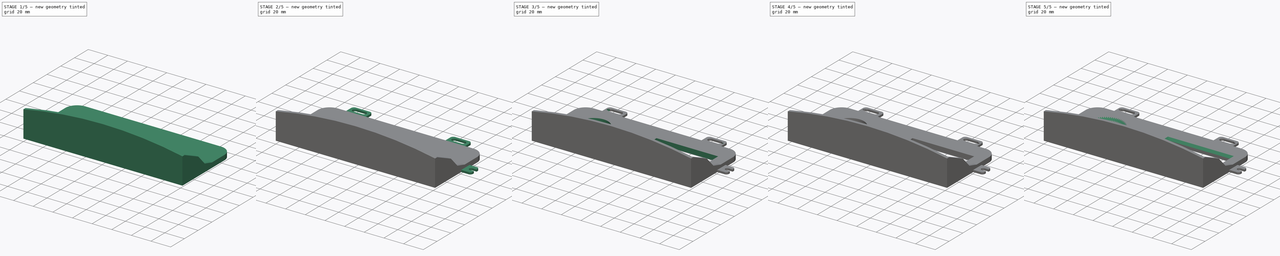
[diagram: build sequence overview — one tinted view per stage of 5, left to right]
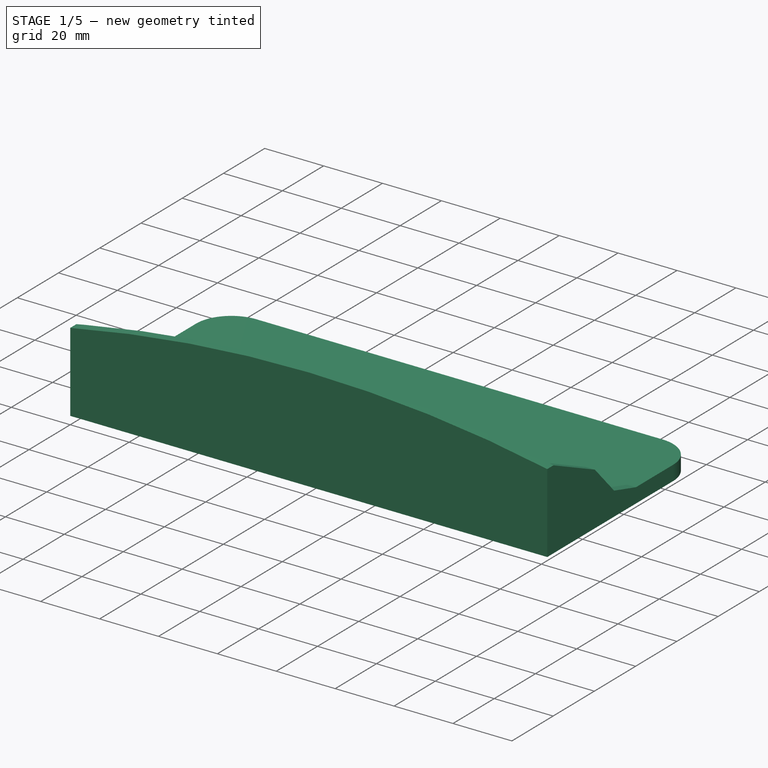
[diagram: stage 1 of 5 — iso view after this stage's code; geometry added in this stage tinted green]
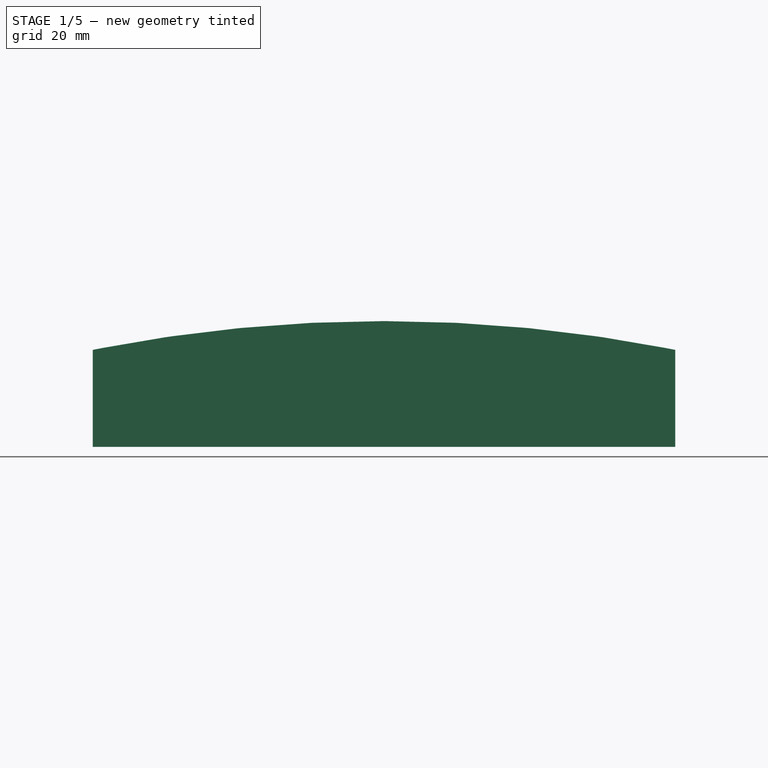
[diagram: stage 1 of 5 — front view after this stage's code; geometry added in this stage tinted green]
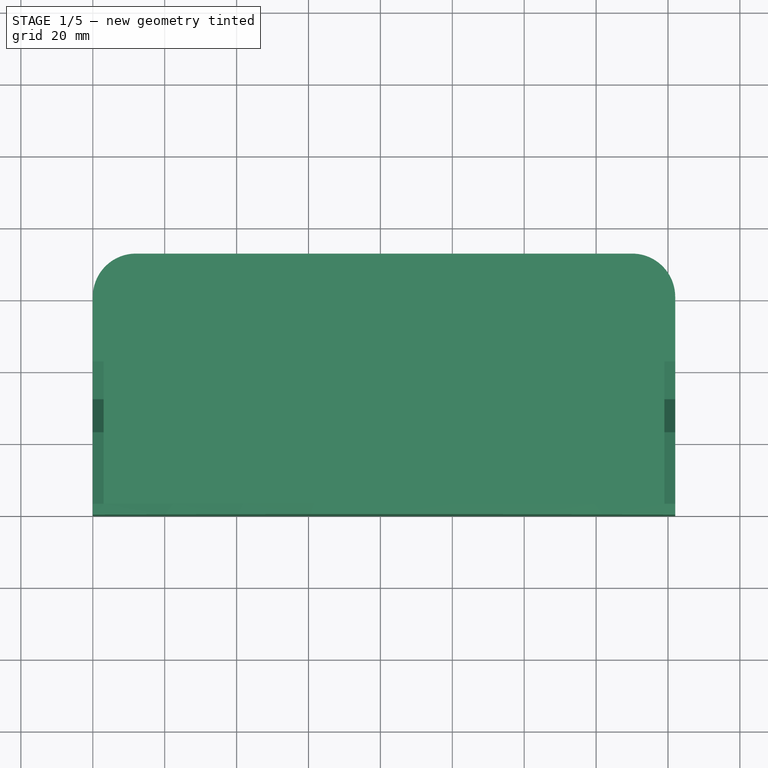
[diagram: stage 1 of 5 — top view after this stage's code; geometry added in this stage tinted green]
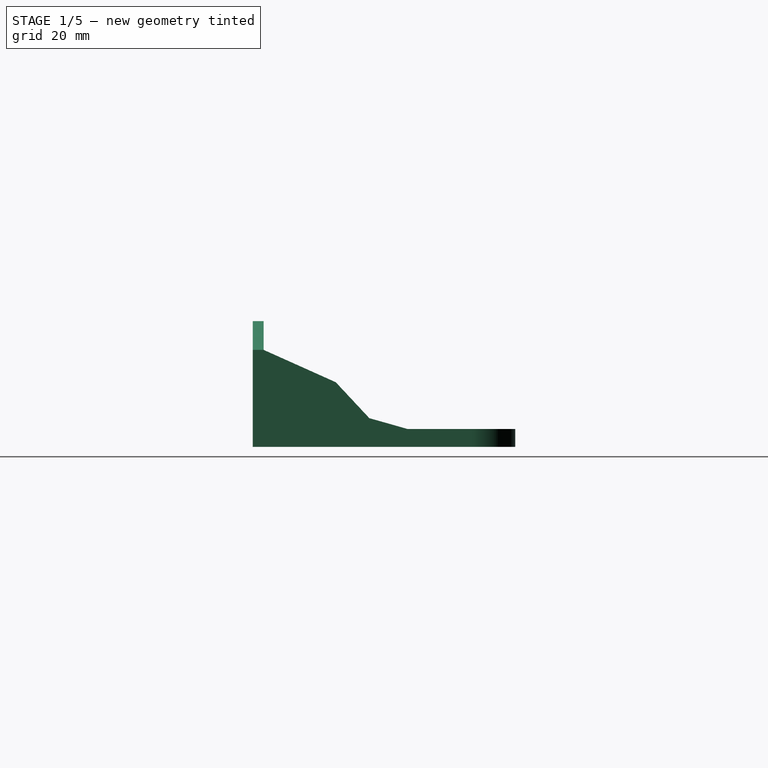
[diagram: stage 1 of 5 — right view after this stage's code; geometry added in this stage tinted green]
FCSTD DOCUMENT  (FreeCAD 0.20R29603 (Git))
Label: IC_Sprayer
License: All rights reserved
LicenseURL: http://en.wikipedia.org/wiki/All_rights_reserved
objects: Sketcher::SketchObject×18, PartDesign::Pocket×15, PartDesign::Pad×3, PartDesign::Chamfer×2, PartDesign::Body×1
note: 59 computed .brp shape members not serialized (recipe doc carries the construction recipe); baked Part::Feature solids carry a one-line shape summary decoded from their .brp

FEATURE [Sketcher::SketchObject] Sketch001
  FullyConstrained = true
  MapMode = 5
  Support = -> [XY_Plane]
  sketch-geometry (8):
    g0: LineSegment StartX=0 StartY=0 StartZ=0 EndX=162 EndY=0 EndZ=0
    g1: LineSegment StartX=162 StartY=0 StartZ=0 EndX=162 EndY=61 EndZ=0
    g2: LineSegment StartX=150 StartY=73 StartZ=0 EndX=12 EndY=73 EndZ=0
    g3: LineSegment StartX=0 StartY=61 StartZ=0 EndX=0 EndY=0 EndZ=0
    g4: ArcOfCircle CenterX=150 CenterY=61 CenterZ=0 NormalX=0 NormalY=0 NormalZ=1 AngleXU=0 Radius=12 StartAngle=3.474e-13 EndAngle=1.5708
    g5: GeomPoint X=162 Y=73 Z=0
    g6: ArcOfCircle CenterX=12 CenterY=61 CenterZ=0 NormalX=0 NormalY=0 NormalZ=1 AngleXU=0 Radius=12 StartAngle=1.5708 EndAngle=3.14159
    g7: GeomPoint X=0 Y=73 Z=0
  constraints (19):
    c: Coincident(g0,g1)
    c: Coincident(g3,g0)
    c: Horizontal(g0)
    c: Horizontal(g2)
    c: Vertical(g1)
    c: Vertical(g3)
    c: Coincident(g0,g-1)
    c: DistanceX(g7,g5) = 162
    c: DistanceY(g1,g5) = 73
    c: PointOnObject(g5,g1)
    c: PointOnObject(g5,g2)
    c: Tangent(g1,g4) = -1.5708
    c: Tangent(g2,g4) = -1.5708
    c: PointOnObject(g7,g3)
    c: PointOnObject(g7,g2)
    c: Tangent(g3,g6) = -1.5708
    c: Tangent(g2,g6) = -1.5708
    c: DistanceY(g6,g2) = 12
    c: DistanceY(g4,g2) = 12
FEATURE [PartDesign::Pad] Pad
  Direction = (0,0,1)
  Length = 5
  Length2 = 10
  Profile = -> Sketch001
  ReferenceAxis = -> Sketch001 [N_Axis]
  Type = 0
FEATURE [Sketcher::SketchObject] Sketch002
  ExternalGeometry = -> [Pad]
  FullyConstrained = true
  MapMode = 5
  Placement = pos=(0,0,5) rot=(0,0,1;0rad)
  Support = -> [Pad]
  sketch-geometry (8):
    g0: LineSegment StartX=0 StartY=0 StartZ=0 EndX=0 EndY=43 EndZ=0
    g1: LineSegment StartX=0 StartY=43 StartZ=0 EndX=3 EndY=43 EndZ=0
    g2: LineSegment StartX=3 StartY=43 StartZ=0 EndX=3 EndY=3 EndZ=0
    g3: LineSegment StartX=3 StartY=3 StartZ=0 EndX=159 EndY=3 EndZ=0
    g4: LineSegment StartX=159 StartY=3 StartZ=0 EndX=159 EndY=43 EndZ=0
    g5: LineSegment StartX=159 StartY=43 StartZ=0 EndX=162 EndY=43 EndZ=0
    g6: LineSegment StartX=162 StartY=43 StartZ=0 EndX=162 EndY=0 EndZ=0
    g7: LineSegment StartX=162 StartY=0 StartZ=0 EndX=0 EndY=0 EndZ=0
  constraints (22):
    c: Coincident(g-1,g0)
    c: PointOnObject(g0,g-2)
    c: Coincident(g0,g1)
    c: Coincident(g1,g2)
    c: Vertical(g2)
    c: Coincident(g2,g3)
    c: Horizontal(g3)
    c: Coincident(g3,g4)
    c: Vertical(g4)
    c: Coincident(g4,g5)
    c: PointOnObject(g5,g-5)
    c: Coincident(g5,g6)
    c: Coincident(g6,g-5)
    c: Coincident(g6,g7)
    c: Coincident(g7,g0)
    c: Parallel(g1,g-1)
    c: DistanceX(g1,g1) = 3
    c: DistanceY(g0,g2) = 3
    c: Parallel(g5,g-1)
    c: DistanceX(g3,g6) = 3
    c: DistanceY(g1,g-3) = 30
    c: DistanceY(g1,g4) = 0
FEATURE [PartDesign::Pad] Pad001
  BaseFeature = -> Pad
  Direction = (0,0,1)
  Length = 30
  Length2 = 10
  Profile = -> Sketch002
  ReferenceAxis = -> Sketch002 [N_Axis]
  Type = 0
FEATURE [Sketcher::SketchObject] Sketch003
  ExternalGeometry = -> [Pad001]
  FullyConstrained = true
  MapMode = 5
  Placement = pos=(162,0,0) rot=(0.57735,0.57735,0.57735;2.0944rad)
  Support = -> [Pad001]
  sketch-geometry (6):
    g0: LineSegment StartX=43 StartY=5 StartZ=0 EndX=32.417 EndY=8 EndZ=0
    g1: LineSegment StartX=32.417 StartY=8 StartZ=0 EndX=23.0749 EndY=18 EndZ=0
    g2: LineSegment StartX=23.0749 StartY=18 StartZ=0 EndX=3 EndY=27 EndZ=0
    g3: LineSegment StartX=3 StartY=27 StartZ=0 EndX=3 EndY=35 EndZ=0
    g4: LineSegment StartX=3 StartY=35 StartZ=0 EndX=43 EndY=35 EndZ=0
    g5: LineSegment StartX=43 StartY=35 StartZ=0 EndX=43 EndY=5 EndZ=0
  constraints (16):
    c: Coincident(g-3,g0)
    c: Coincident(g0,g1)
    c: Coincident(g1,g2)
    c: Coincident(g2,g3)
    c: PointOnObject(g3,g-4)
    c: Vertical(g3)
    c: Coincident(g3,g4)
    c: Coincident(g4,g-4)
    c: Coincident(g4,g5)
    c: Coincident(g5,g0)
    c: Distance(g0) = 11
    c: DistanceY(g0,g0) = 3
    c: DistanceY(g0,g1) = 13
    c: DistanceX(g-4,g3) = 3
    c: DistanceY(g0,g2) = 22
    c: Distance(g2) = 22
FEATURE [PartDesign::Pocket] Pocket
  BaseFeature = -> Pad001
  Direction = (-1,0,0)
  Length = 5
  Length2 = 5
  Profile = -> Sketch003
  ReferenceAxis = -> Sketch003 [N_Axis]
  Type = 1
FEATURE [Sketcher::SketchObject] Sketch004
  ExternalGeometry = -> [Pocket]
  FullyConstrained = false
  MapMode = 5
  Placement = pos=(0,0,0) rot=(1,0,0;1.5708rad)
  Support = -> [Pocket]
  sketch-geometry (4):
    g0: LineSegment StartX=-1.42e-14 StartY=27 StartZ=0 EndX=0 EndY=61.0434 EndZ=0
    g1: LineSegment StartX=0 StartY=61.0434 StartZ=0 EndX=162 EndY=61.0434 EndZ=0
    g2: LineSegment StartX=162 StartY=61.0434 StartZ=0 EndX=162 EndY=27 EndZ=0
    g3: ArcOfCircle CenterX=81 CenterY=-379.062 CenterZ=0 NormalX=0 NormalY=0 NormalZ=1 AngleXU=0 Radius=414.062 StartAngle=1.3739 EndAngle=1.76769
  constraints (10):
    c: Coincident(g-5,g0)
    c: PointOnObject(g0,g-2)
    c: Coincident(g0,g1)
    c: Horizontal(g1)
    c: Coincident(g1,g2)
    c: Coincident(g2,g-4)
    c: Coincident(g3,g0)
    c: Coincident(g3,g2)
    c: Tangent(g3,g-6)
    c: Parallel(g2,g0)
FEATURE [PartDesign::Pocket] Pocket001
  BaseFeature = -> Pocket
  Direction = (0,1,-2e-16)
  Length = 5
  Length2 = 5
  Profile = -> Sketch004
  ReferenceAxis = -> Sketch004 [N_Axis]
  Type = 0
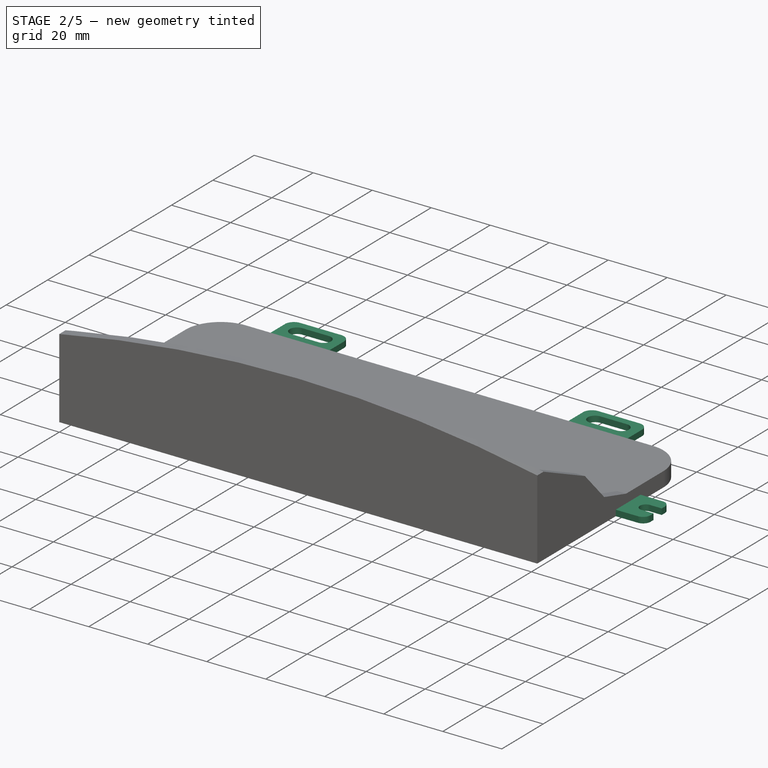
[diagram: stage 2 of 5 — iso view after this stage's code; geometry added in this stage tinted green]
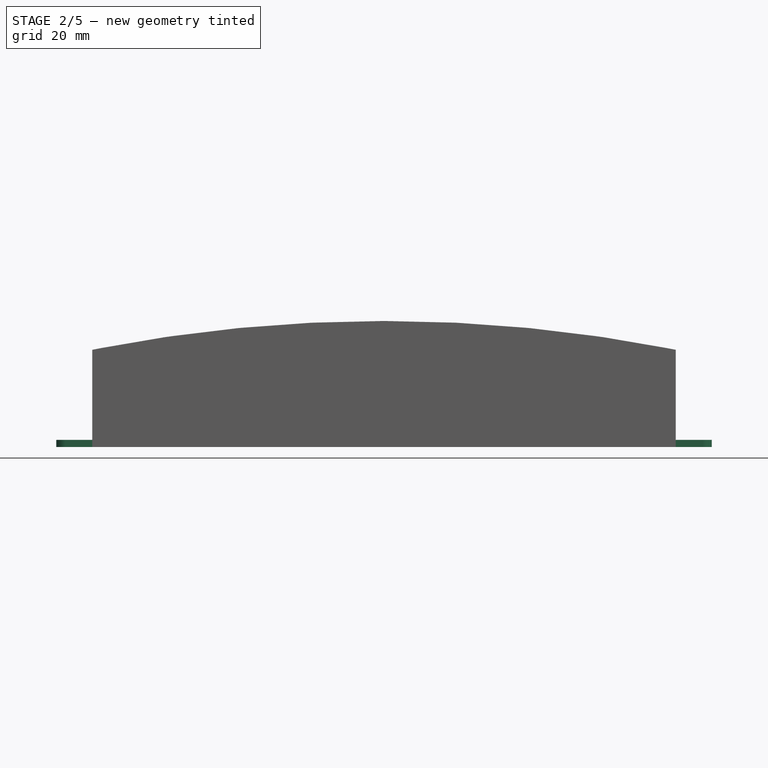
[diagram: stage 2 of 5 — front view after this stage's code; geometry added in this stage tinted green]
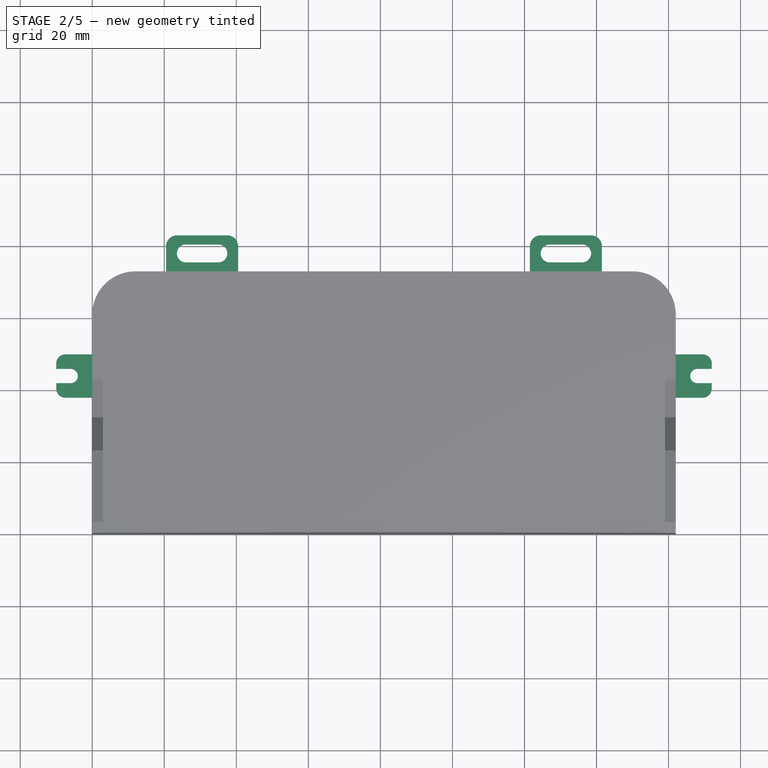
[diagram: stage 2 of 5 — top view after this stage's code; geometry added in this stage tinted green]
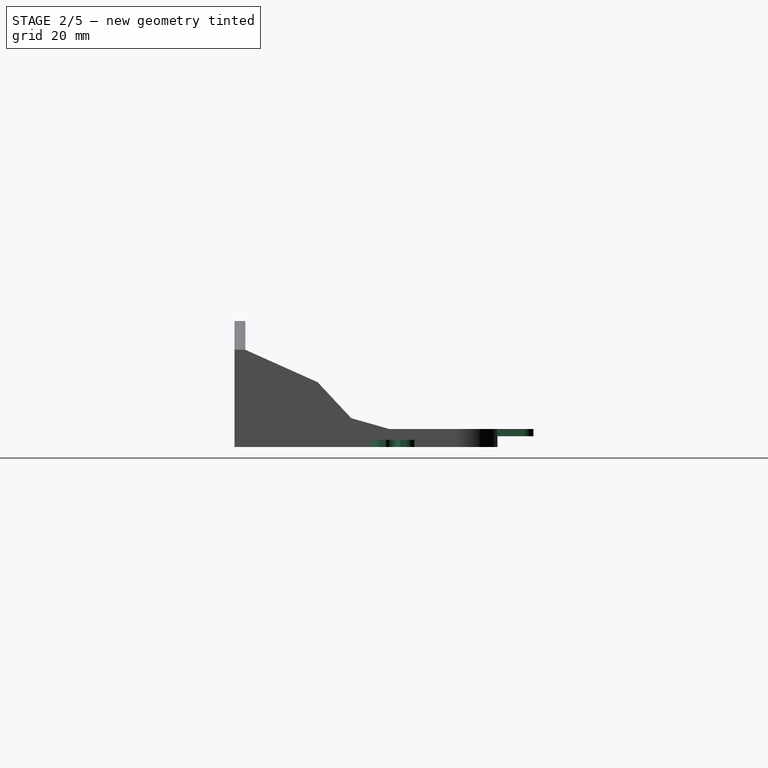
[diagram: stage 2 of 5 — right view after this stage's code; geometry added in this stage tinted green]
FEATURE [Sketcher::SketchObject] Sketch005
  ExternalGeometry = -> [Pocket001]
  FullyConstrained = true
  MapMode = 5
  Placement = pos=(0,0,5) rot=(0,0,1;0rad)
  Support = -> [Pocket001]
  sketch-geometry (32):
    g0: LineSegment StartX=162 StartY=50 StartZ=0 EndX=169.5 EndY=50 EndZ=0
    g1: LineSegment StartX=172 StartY=47.5 StartZ=0 EndX=172 EndY=40.5 EndZ=0
    g2: LineSegment StartX=169.5 StartY=38 StartZ=0 EndX=162 EndY=38 EndZ=0
    g3: LineSegment StartX=162 StartY=38 StartZ=0 EndX=162 EndY=50 EndZ=0
    g4: LineSegment StartX=0 StartY=50 StartZ=0 EndX=-7.5 EndY=50 EndZ=0
    g5: LineSegment StartX=-10 StartY=47.5 StartZ=0 EndX=-10 EndY=40.5 EndZ=0
    g6: LineSegment StartX=-7.5 StartY=38 StartZ=0 EndX=0 EndY=38 EndZ=0
    g7: LineSegment StartX=0 StartY=38 StartZ=0 EndX=0 EndY=50 EndZ=0
    g8: LineSegment StartX=20.5 StartY=73 StartZ=0 EndX=40.5 EndY=73 EndZ=0
    g9: LineSegment StartX=40.5 StartY=73 StartZ=0 EndX=40.5 EndY=80 EndZ=0
    g10: LineSegment StartX=37.5 StartY=83 StartZ=0 EndX=23.5 EndY=83 EndZ=0
    g11: LineSegment StartX=20.5 StartY=80 StartZ=0 EndX=20.5 EndY=73 EndZ=0
    g12: LineSegment StartX=121.5 StartY=73 StartZ=0 EndX=141.5 EndY=73 EndZ=0
    g13: LineSegment StartX=141.5 StartY=73 StartZ=0 EndX=141.5 EndY=80 EndZ=0
    g14: LineSegment StartX=138.5 StartY=83 StartZ=0 EndX=124.5 EndY=83 EndZ=0
    g15: LineSegment StartX=121.5 StartY=80 StartZ=0 EndX=121.5 EndY=73 EndZ=0
    g16: ArcOfCircle CenterX=-7.5 CenterY=47.5 CenterZ=0 NormalX=0 NormalY=0 NormalZ=1 AngleXU=0 Radius=2.5 StartAngle=1.5708 EndAngle=3.14159
    g17: GeomPoint X=-10 Y=50 Z=0
    g18: ArcOfCircle CenterX=-7.5 CenterY=40.5 CenterZ=0 NormalX=0 NormalY=0 NormalZ=1 AngleXU=0 Radius=2.5 StartAngle=3.14159 EndAngle=4.71239
    g19: GeomPoint X=-10 Y=38 Z=0
    g20: ArcOfCircle CenterX=169.5 CenterY=40.5 CenterZ=0 NormalX=0 NormalY=0 NormalZ=1 AngleXU=0 Radius=2.5 StartAngle=4.71239 EndAngle=6.28319
    g21: GeomPoint X=172 Y=38 Z=0
    g22: ArcOfCircle CenterX=169.5 CenterY=47.5 CenterZ=0 NormalX=0 NormalY=0 NormalZ=1 AngleXU=0 Radius=2.5 StartAngle=0 EndAngle=1.5708
    g23: GeomPoint X=172 Y=50 Z=0
    g24: ArcOfCircle CenterX=23.5 CenterY=80 CenterZ=0 NormalX=0 NormalY=0 NormalZ=1 AngleXU=0 Radius=3 StartAngle=1.5708 EndAngle=3.14159
    g25: GeomPoint X=20.5 Y=83 Z=0
    g26: ArcOfCircle CenterX=37.5 CenterY=80 CenterZ=0 NormalX=0 NormalY=0 NormalZ=1 AngleXU=0 Radius=3 StartAngle=-1.8e-15 EndAngle=1.5708
    g27: GeomPoint X=40.5 Y=83 Z=0
    g28: ArcOfCircle CenterX=124.5 CenterY=80 CenterZ=0 NormalX=0 NormalY=0 NormalZ=1 AngleXU=0 Radius=3 StartAngle=1.5708 EndAngle=3.14159
    g29: GeomPoint X=121.5 Y=83 Z=0
    g30: ArcOfCircle CenterX=138.5 CenterY=80 CenterZ=0 NormalX=0 NormalY=0 NormalZ=1 AngleXU=0 Radius=3 StartAngle=-9e-16 EndAngle=1.5708
    g31: GeomPoint X=141.5 Y=83 Z=0
  constraints (80):
    c: Coincident(g2,g3)
    c: Coincident(g3,g0)
    c: Horizontal(g0)
    c: Horizontal(g2)
    c: Vertical(g1)
    c: Vertical(g3)
    c: PointOnObject(g0,g-5)
    c: Coincident(g6,g7)
    c: Coincident(g7,g4)
    c: Horizontal(g4)
    c: Horizontal(g6)
    c: Vertical(g5)
    c: Vertical(g7)
    c: PointOnObject(g4,g-4)
    c: Coincident(g8,g9)
    c: Coincident(g11,g8)
    c: Horizontal(g8)
    c: Horizontal(g10)
    c: Vertical(g9)
    c: Vertical(g11)
    c: PointOnObject(g8,g-3)
    c: Coincident(g12,g13)
    c: Coincident(g15,g12)
    c: Horizontal(g12)
    c: Horizontal(g14)
    c: Vertical(g13)
    c: Vertical(g15)
    c: PointOnObject(g12,g-3)
    c: DistanceY(g21,g23) = 12
    c: DistanceY(g19,g17) = 12
    c: DistanceY(g2,g-5) = 5
    c: DistanceY(g6,g-4) = 5
    c: DistanceX(g17,g4) = 10
    c: DistanceX(g0,g23) = 10
    c: DistanceX(g29,g31) = 20
    c: DistanceX(g25,g27) = 20
    c: DistanceY(g13,g31) = 10
    c: DistanceY(g9,g27) = 10
    c: PointOnObject(g17,g5)
    c: PointOnObject(g17,g4)
    c: Tangent(g5,g16) = -1.5708
    c: Tangent(g4,g16) = -1.5708
    c: PointOnObject(g19,g6)
    c: PointOnObject(g19,g5)
    c: Tangent(g6,g18) = -1.5708
    c: Tangent(g5,g18) = -1.5708
    c: PointOnObject(g21,g2)
    c: PointOnObject(g21,g1)
    c: Tangent(g2,g20) = 1.5708
    c: Tangent(g1,g20) = 1.5708
    c: PointOnObject(g23,g1)
    c: PointOnObject(g23,g0)
    c: Tangent(g1,g22) = 1.5708
    c: Tangent(g0,g22) = 1.5708
    c: DistanceX(g22,g1) = 2.5
    c: DistanceX(g20,g1) = 2.5
    c: DistanceX(g5,g18) = 2.5
    c: DistanceX(g5,g16) = 2.5
    c: PointOnObject(g25,g11)
    c: PointOnObject(g25,g10)
    c: Tangent(g11,g24) = -1.5708
    c: Tangent(g10,g24) = -1.5708
    c: PointOnObject(g27,g9)
    c: PointOnObject(g27,g10)
    c: Tangent(g9,g26) = -1.5708
    c: Tangent(g10,g26) = -1.5708
    c: PointOnObject(g29,g15)
    c: PointOnObject(g29,g14)
    c: Tangent(g15,g28) = -1.5708
    c: Tangent(g14,g28) = -1.5708
    c: PointOnObject(g31,g13)
    c: PointOnObject(g31,g14)
    c: Tangent(g13,g30) = -1.5708
    c: Tangent(g14,g30) = -1.5708
    c: DistanceX(g11,g24) = 3
    c: DistanceX(g26,g9) = 3
    c: DistanceX(g15,g28) = 3
    c: DistanceX(g30,g13) = 3
    c: DistanceX(g12,g-5) = 20.5
    c: DistanceX(g-4,g8) = 20.5
FEATURE [PartDesign::Pad] Pad002
  BaseFeature = -> Pocket001
  Direction = (0,0,1)
  Length = 5
  Length2 = 10
  Profile = -> Sketch005
  ReferenceAxis = -> Sketch005 [N_Axis]
  Reversed = true
  Type = 0
FEATURE [Sketcher::SketchObject] Sketch006
  ExternalGeometry = -> [Pad002]
  FullyConstrained = false
  MapMode = 5
  Placement = pos=(0,0,5) rot=(0,0,1;0rad)
  Support = -> [Pad002]
  sketch-geometry (16):
    g0: ArcOfCircle CenterX=26 CenterY=78 CenterZ=0 NormalX=0 NormalY=0 NormalZ=1 AngleXU=0 Radius=2.5 StartAngle=1.5708 EndAngle=4.71239
    g1: ArcOfCircle CenterX=35 CenterY=78 CenterZ=0 NormalX=0 NormalY=0 NormalZ=1 AngleXU=0 Radius=2.5 StartAngle=4.71239 EndAngle=7.85398
    g2: LineSegment StartX=26 StartY=75.5 StartZ=0 EndX=35 EndY=75.5 EndZ=0
    g3: LineSegment StartX=35 StartY=80.5 StartZ=0 EndX=26 EndY=80.5 EndZ=0
    g4: ArcOfCircle CenterX=127 CenterY=78 CenterZ=0 NormalX=0 NormalY=0 NormalZ=1 AngleXU=0 Radius=2.5 StartAngle=1.5708 EndAngle=4.71239
    g5: ArcOfCircle CenterX=136 CenterY=78 CenterZ=0 NormalX=0 NormalY=0 NormalZ=1 AngleXU=0 Radius=2.5 StartAngle=4.71239 EndAngle=7.85398
    g6: LineSegment StartX=127 StartY=75.5 StartZ=0 EndX=136 EndY=75.5 EndZ=0
    g7: LineSegment StartX=136 StartY=80.5 StartZ=0 EndX=127 EndY=80.5 EndZ=0
    g8: ArcOfCircle CenterX=-15.2673 CenterY=44 CenterZ=0 NormalX=0 NormalY=0 NormalZ=1 AngleXU=0 Radius=2 StartAngle=1.5708 EndAngle=4.71239
    g9: ArcOfCircle CenterX=-6 CenterY=44 CenterZ=0 NormalX=0 NormalY=0 NormalZ=1 AngleXU=0 Radius=2 StartAngle=4.71239 EndAngle=7.85398
    g10: LineSegment StartX=-15.2673 StartY=42 StartZ=0 EndX=-6 EndY=42 EndZ=0
    g11: LineSegment StartX=-6 StartY=46 StartZ=0 EndX=-15.2673 EndY=46 EndZ=0
    g12: ArcOfCircle CenterX=180.836 CenterY=44 CenterZ=0 NormalX=0 NormalY=0 NormalZ=1 AngleXU=0 Radius=2 StartAngle=4.71239 EndAngle=7.85398
    g13: ArcOfCircle CenterX=168 CenterY=44 CenterZ=0 NormalX=0 NormalY=0 NormalZ=1 AngleXU=0 Radius=2 StartAngle=1.5708 EndAngle=4.71239
    g14: LineSegment StartX=180.836 StartY=46 StartZ=0 EndX=168 EndY=46 EndZ=0
    g15: LineSegment StartX=168 StartY=42 StartZ=0 EndX=180.836 EndY=42 EndZ=0
  constraints (38):
    c: Tangent(g0,g2) = -1.5708
    c: Tangent(g2,g1) = -1.5708
    c: Tangent(g1,g3) = -1.5708
    c: Tangent(g3,g0) = -1.5708
    c: Equal(g0,g1)
    c: Horizontal(g2)
    c: Tangent(g4,g6) = -1.5708
    c: Tangent(g6,g5) = -1.5708
    c: Tangent(g5,g7) = -1.5708
    c: Tangent(g7,g4) = -1.5708
    c: Equal(g4,g5)
    c: Horizontal(g6)
    c: DistanceY(g4,g-5) = 2.5
    c: DistanceY(g1,g-3) = 2.5
    c: DistanceY(g4,g4) = 5
    c: DistanceY(g0,g0) = 5
    c: DistanceX(g-7,g4) = 5.5
    c: DistanceX(g1,g-4) = 5.5
    c: Tangent(g8,g10) = -1.5708
    c: Tangent(g10,g9) = -1.5708
    c: Tangent(g9,g11) = -1.5708
    c: Tangent(g11,g8) = -1.5708
    c: Equal(g8,g9)
    c: Horizontal(g10)
    c: Tangent(g12,g14) = -1.5708
    c: Tangent(g14,g13) = -1.5708
    c: Tangent(g13,g15) = -1.5708
    c: Tangent(g15,g12) = -1.5708
    c: Equal(g12,g13)
    c: Horizontal(g14)
    c: DistanceY(g13,g13) = 4
    c: DistanceY(g8,g8) = 4
    c: DistanceX(g9,g-13) = 6
    c: DistanceY(g9,g-13) = 4
    c: DistanceY(g13,g-8) = 4
    c: DistanceX(g-8,g13) = 6
    c: DistanceX(g5,g-6) = 5.5
    c: DistanceX(g-14,g0) = 5.5
FEATURE [PartDesign::Pocket] Pocket002
  BaseFeature = -> Pad002
  Direction = (0,0,-1)
  Length = 5
  Length2 = 5
  Profile = -> Sketch006
  ReferenceAxis = -> Sketch006 [N_Axis]
  Type = 1
FEATURE [Sketcher::SketchObject] Sketch007
  ExternalGeometry = -> [Pocket002]
  FullyConstrained = false
  MapMode = 5
  Placement = pos=(0,0,5) rot=(0,0,1;0rad)
  Support = -> [Pocket002]
  sketch-geometry (8):
    g0: LineSegment StartX=0 StartY=38 StartZ=0 EndX=-22.3039 EndY=38 EndZ=0
    g1: LineSegment StartX=-22.3039 StartY=38 StartZ=0 EndX=-22.3039 EndY=53.153 EndZ=0
    g2: LineSegment StartX=-22.3039 StartY=53.153 StartZ=0 EndX=0 EndY=53.153 EndZ=0
    g3: LineSegment StartX=0 StartY=53.153 StartZ=0 EndX=0 EndY=38 EndZ=0
    g4: LineSegment StartX=162 StartY=50 StartZ=0 EndX=177.273 EndY=50 EndZ=0
    g5: LineSegment StartX=177.273 StartY=50 StartZ=0 EndX=177.273 EndY=36.2138 EndZ=0
    g6: LineSegment StartX=177.273 StartY=36.2138 StartZ=0 EndX=162 EndY=36.2138 EndZ=0
    g7: LineSegment StartX=162 StartY=36.2138 StartZ=0 EndX=162 EndY=50 EndZ=0
  constraints (18):
    c: Coincident(g0,g1)
    c: Coincident(g1,g2)
    c: Coincident(g2,g3)
    c: Coincident(g3,g0)
    c: Horizontal(g0)
    c: Horizontal(g2)
    c: Vertical(g1)
    c: Vertical(g3)
    c: Coincident(g0,g-4)
    c: Coincident(g4,g5)
    c: Coincident(g5,g6)
    c: Coincident(g6,g7)
    c: Coincident(g7,g4)
    c: Horizontal(g4)
    c: Horizontal(g6)
    c: Vertical(g5)
    c: Vertical(g7)
    c: Coincident(g4,g-3)
FEATURE [PartDesign::Pocket] Pocket003
  BaseFeature = -> Pocket002
  Direction = (0,0,-1)
  Length = 3
  Length2 = 5
  Profile = -> Sketch007
  ReferenceAxis = -> Sketch007 [N_Axis]
  Type = 0
FEATURE [Sketcher::SketchObject] Sketch008
  ExternalGeometry = -> [Pocket003]
  FullyConstrained = false
  MapMode = 5
  Placement = pos=(0,0,0) rot=(1,0,0;3.14159rad)
  Support = -> [Pocket003]
  sketch-geometry (8):
    g0: LineSegment StartX=40.5 StartY=-73 StartZ=0 EndX=14.8936 EndY=-73 EndZ=0
    g1: LineSegment StartX=14.8936 StartY=-73 StartZ=0 EndX=14.8936 EndY=-89.8515 EndZ=0
    g2: LineSegment StartX=14.8936 StartY=-89.8515 StartZ=0 EndX=40.5 EndY=-89.8515 EndZ=0
    g3: LineSegment StartX=40.5 StartY=-89.8515 StartZ=0 EndX=40.5 EndY=-73 EndZ=0
    g4: LineSegment StartX=121.5 StartY=-73 StartZ=0 EndX=158.155 EndY=-73 EndZ=0
    g5: LineSegment StartX=158.155 StartY=-73 StartZ=0 EndX=158.155 EndY=-91.3716 EndZ=0
    g6: LineSegment StartX=158.155 StartY=-91.3716 StartZ=0 EndX=121.5 EndY=-91.3716 EndZ=0
    g7: LineSegment StartX=121.5 StartY=-91.3716 StartZ=0 EndX=121.5 EndY=-73 EndZ=0
  constraints (18):
    c: Coincident(g0,g1)
    c: Coincident(g1,g2)
    c: Coincident(g2,g3)
    c: Coincident(g3,g0)
    c: Horizontal(g0)
    c: Horizontal(g2)
    c: Vertical(g1)
    c: Vertical(g3)
    c: Coincident(g0,g-3)
    c: Coincident(g4,g5)
    c: Coincident(g5,g6)
    c: Coincident(g6,g7)
    c: Coincident(g7,g4)
    c: Horizontal(g4)
    c: Horizontal(g6)
    c: Vertical(g5)
    c: Vertical(g7)
    c: Coincident(g4,g-3)
FEATURE [PartDesign::Pocket] Pocket004
  BaseFeature = -> Pocket003
  Direction = (0,0,1)
  Length = 3
  Length2 = 5
  Profile = -> Sketch008
  ReferenceAxis = -> Sketch008 [N_Axis]
  Type = 0
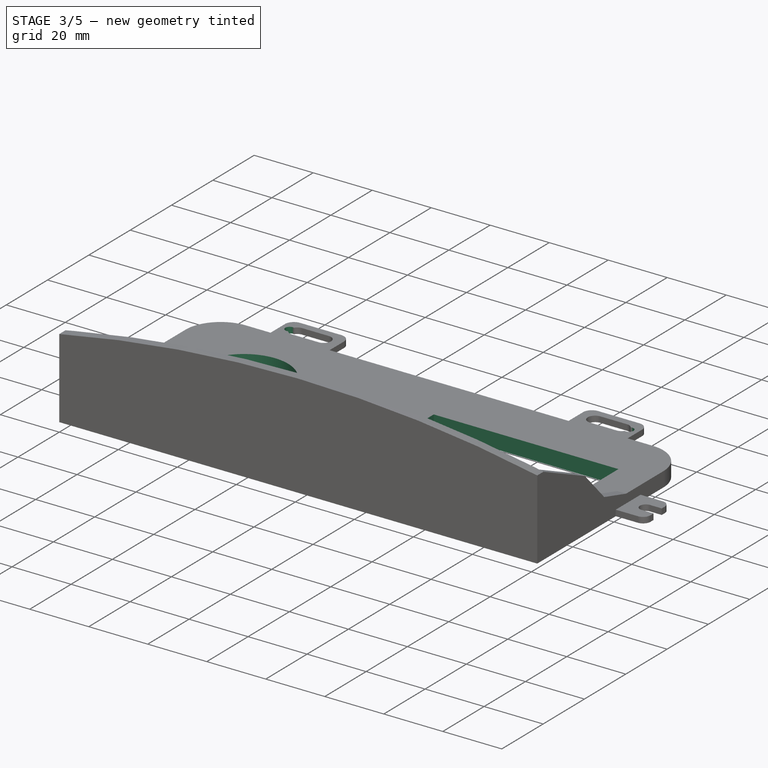
[diagram: stage 3 of 5 — iso view after this stage's code; geometry added in this stage tinted green]
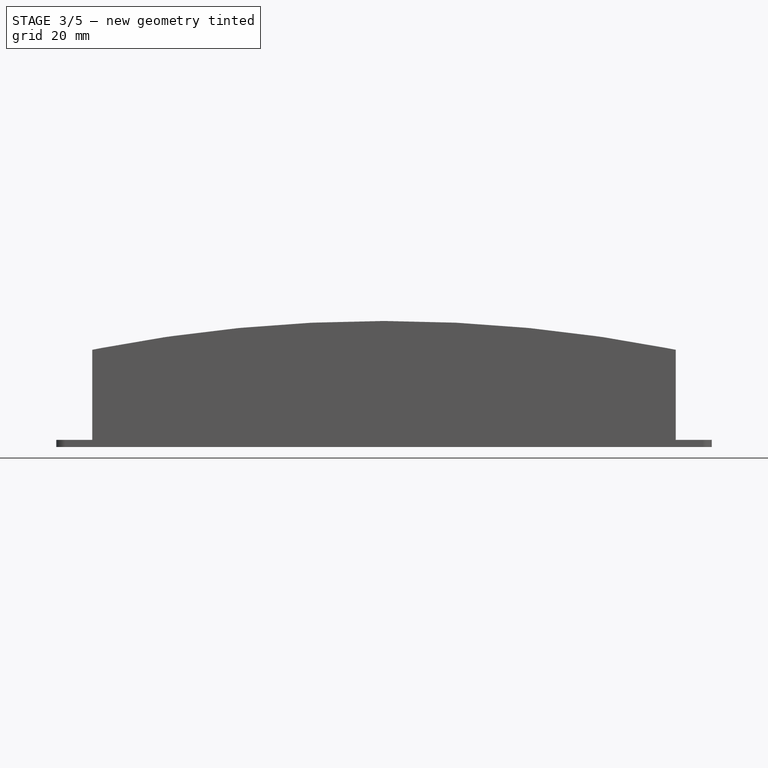
[diagram: stage 3 of 5 — front view after this stage's code; geometry added in this stage tinted green]
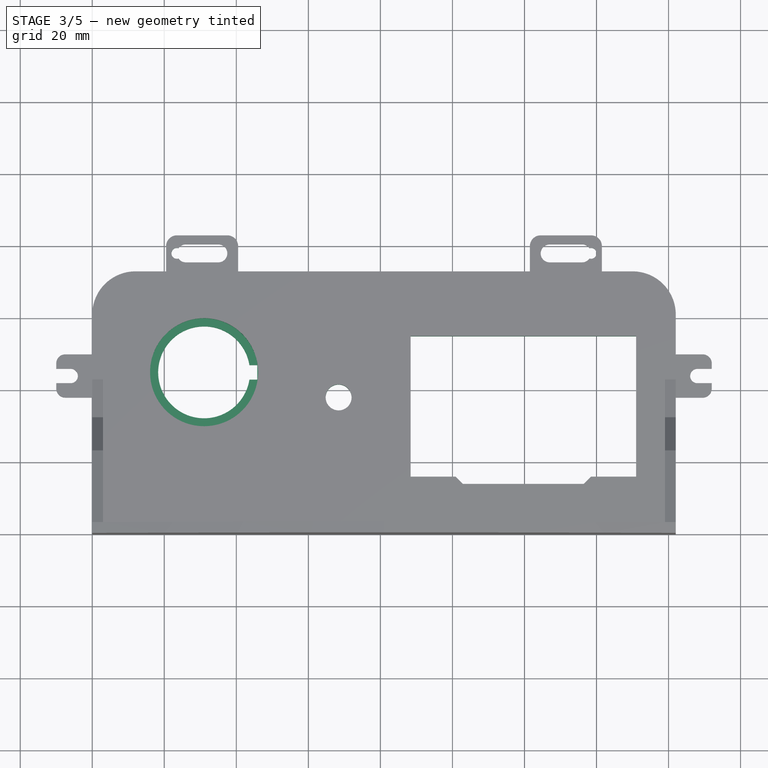
[diagram: stage 3 of 5 — top view after this stage's code; geometry added in this stage tinted green]
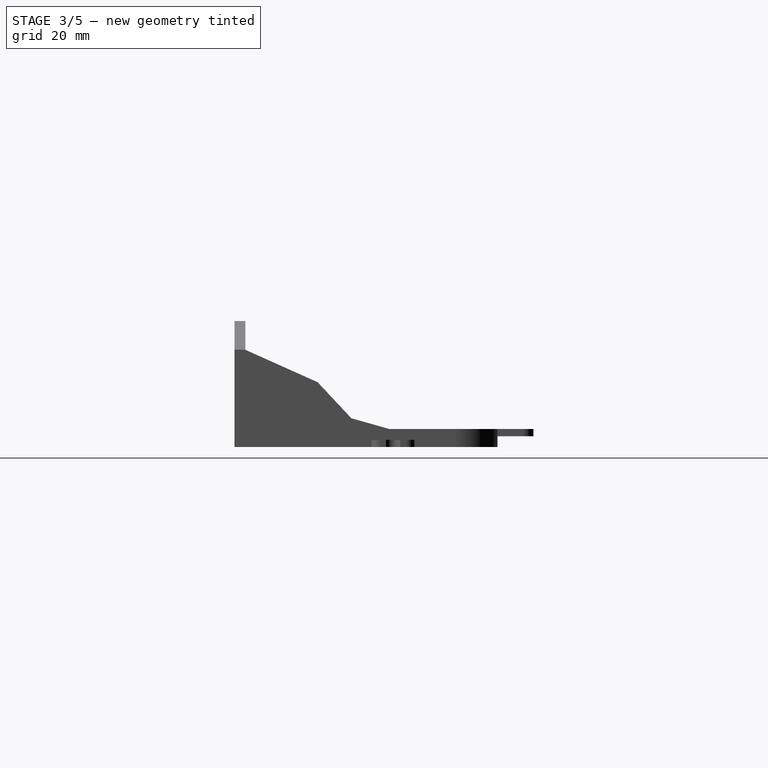
[diagram: stage 3 of 5 — right view after this stage's code; geometry added in this stage tinted green]
FEATURE [Sketcher::SketchObject] Sketch009
  ExternalGeometry = -> [Pocket004]
  FullyConstrained = true
  MapMode = 5
  Placement = pos=(0,0,5) rot=(0,0,1;0rad)
  Support = -> [Pocket004]
  sketch-geometry (2):
    g0: Circle CenterX=138.5 CenterY=78 CenterZ=0 NormalX=0 NormalY=0 NormalZ=1 AngleXU=0 Radius=1.5
    g1: Circle CenterX=23.5 CenterY=78 CenterZ=0 NormalX=0 NormalY=0 NormalZ=1 AngleXU=0 Radius=1.5
  constraints (6):
    c: PointOnObject(g0,g-4)
    c: PointOnObject(g1,g-3)
    c: DistanceY(g-3,g1) = 0
    c: Diameter(g1) = 3
    c: Diameter(g0) = 3
    c: DistanceY(g0,g-4) = 0
FEATURE [PartDesign::Pocket] Pocket005
  BaseFeature = -> Pocket004
  Direction = (0,0,-1)
  Length = 5
  Length2 = 5
  Profile = -> Sketch009
  ReferenceAxis = -> Sketch009 [N_Axis]
  Type = 0
FEATURE [Sketcher::SketchObject] Sketch010
  ExternalGeometry = -> [Pocket005]
  FullyConstrained = false
  MapMode = 5
  Placement = pos=(0,0,5) rot=(0,0,1;0rad)
  Support = -> [Pocket005]
  sketch-geometry (10):
    g0: LineSegment StartX=88.4 StartY=55 StartZ=0 EndX=151 EndY=55 EndZ=0
    g1: LineSegment StartX=151 StartY=55 StartZ=0 EndX=151 EndY=16 EndZ=0
    g2: LineSegment StartX=151 StartY=16 StartZ=0 EndX=138.5 EndY=16 EndZ=0
    g3: LineSegment StartX=138.5 StartY=16 StartZ=0 EndX=136.5 EndY=14 EndZ=0
    g4: LineSegment StartX=136.5 StartY=14 StartZ=0 EndX=102.9 EndY=14 EndZ=0
    g5: LineSegment StartX=102.9 StartY=14 StartZ=0 EndX=100.9 EndY=16 EndZ=0
    g6: LineSegment StartX=100.9 StartY=16 StartZ=0 EndX=88.4 EndY=16 EndZ=0
    g7: LineSegment StartX=88.4 StartY=16 StartZ=0 EndX=88.4 EndY=55 EndZ=0
    g8: Circle CenterX=68.4 CenterY=38 CenterZ=0 NormalX=0 NormalY=0 NormalZ=1 AngleXU=0 Radius=3.6
    g9: Circle CenterX=31.0483 CenterY=45 CenterZ=0 NormalX=0 NormalY=0 NormalZ=1 AngleXU=0 Radius=12.75
  constraints (29):
    c: Horizontal(g0)
    c: Coincident(g0,g1)
    c: Vertical(g1)
    c: Coincident(g1,g2)
    c: Coincident(g2,g3)
    c: Coincident(g3,g4)
    c: Horizontal(g4)
    c: Coincident(g4,g5)
    c: Coincident(g5,g6)
    c: Coincident(g6,g7)
    c: Coincident(g7,g0)
    c: DistanceX(g0,g0) = 62.6
    c: DistanceX(g6,g1) = 62.6
    c: DistanceY(g6,g0) = 39
    c: DistanceY(g1,g0) = 39
    c: DistanceY(g4,g0) = 41
    c: Parallel(g0,g6)
    c: Parallel(g2,g0)
    c: DistanceX(g6,g6) = 12.5
    c: DistanceX(g2,g2) = 12.5
    c: Angle(g6,g5) = 2.35619
    c: Angle(g3,g4) = 2.35619
    c: DistanceY(g0,g-3) = 18
    c: DistanceX(g0,g-4) = 11
    c: Diameter(g8) = 7.2
    c: DistanceY(g8,g0) = 17
    c: DistanceX(g8,g0) = 20
    c: Diameter(g9) = 25.5
    c: DistanceY(g9,g0) = 10
FEATURE [PartDesign::Pocket] Pocket006
  BaseFeature = -> Pocket005
  Direction = (0,0,-1)
  Length = 5
  Length2 = 5
  Profile = -> Sketch010
  ReferenceAxis = -> Sketch010 [N_Axis]
  Type = 1
FEATURE [Sketcher::SketchObject] Sketch011
  ExternalGeometry = -> [Pocket006]
  FullyConstrained = false
  MapMode = 5
  Placement = pos=(0,0,5) rot=(0,0,1;0rad)
  Support = -> [Pocket006]
  sketch-geometry (4):
    g0: LineSegment StartX=40.1733 StartY=47 StartZ=0 EndX=45.7983 EndY=47 EndZ=0
    g1: LineSegment StartX=45.7983 StartY=47 StartZ=0 EndX=45.7983 EndY=43 EndZ=0
    g2: LineSegment StartX=45.7983 StartY=43 StartZ=0 EndX=40.1733 EndY=43 EndZ=0
    g3: LineSegment StartX=40.1733 StartY=43 StartZ=0 EndX=40.1733 EndY=47 EndZ=0
  constraints (11):
    c: Coincident(g0,g1)
    c: Coincident(g1,g2)
    c: Coincident(g2,g3)
    c: Coincident(g3,g0)
    c: Horizontal(g0)
    c: Horizontal(g2)
    c: Vertical(g1)
    c: Vertical(g3)
    c: DistanceY(g2,g-4) = 2
    c: DistanceY(g3,g3) = 4
    c: DistanceX(g-3,g0) = 2
FEATURE [PartDesign::Pocket] Pocket007
  BaseFeature = -> Pocket006
  Direction = (0,0,-1)
  Length = 5
  Length2 = 5
  Profile = -> Sketch011
  ReferenceAxis = -> Sketch011 [N_Axis]
  Type = 1
FEATURE [Sketcher::SketchObject] Sketch012
  ExternalGeometry = -> [Pocket007]
  FullyConstrained = true
  MapMode = 5
  Placement = pos=(0,0,5) rot=(0,0,1;0rad)
  Support = -> [Pocket007]
  sketch-geometry (1):
    g0: Circle CenterX=31.0483 CenterY=45 CenterZ=0 NormalX=0 NormalY=0 NormalZ=1 AngleXU=0 Radius=15
  constraints (2):
    c: Coincident(g0,g-3)
    c: Diameter(g0) = 30
FEATURE [PartDesign::Pocket] Pocket008
  BaseFeature = -> Pocket007
  Direction = (0,0,-1)
  Length = 3
  Length2 = 5
  Profile = -> Sketch012
  ReferenceAxis = -> Sketch012 [N_Axis]
  Type = 0
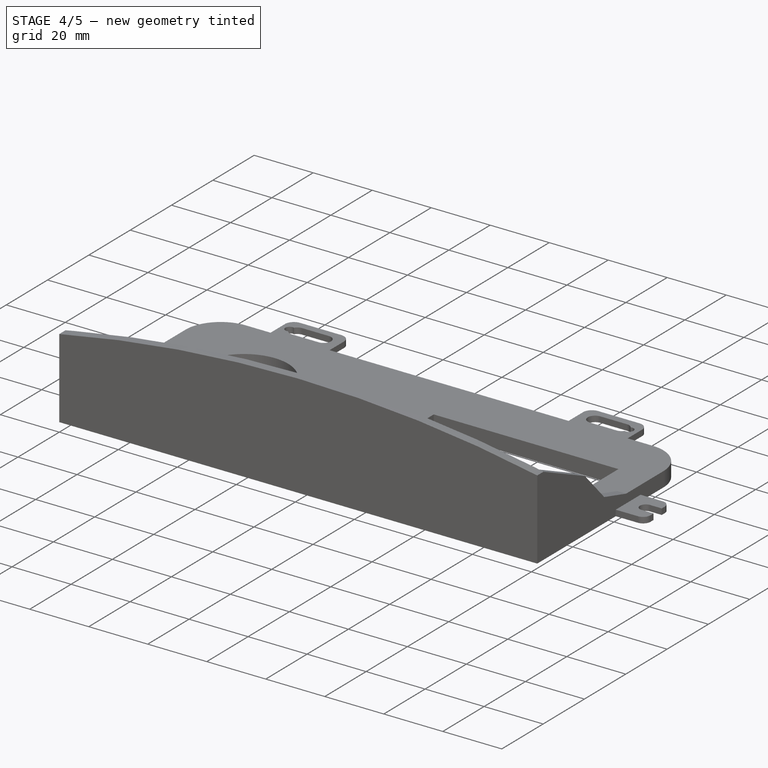
[diagram: stage 4 of 5 — iso view after this stage's code; geometry added in this stage tinted green]
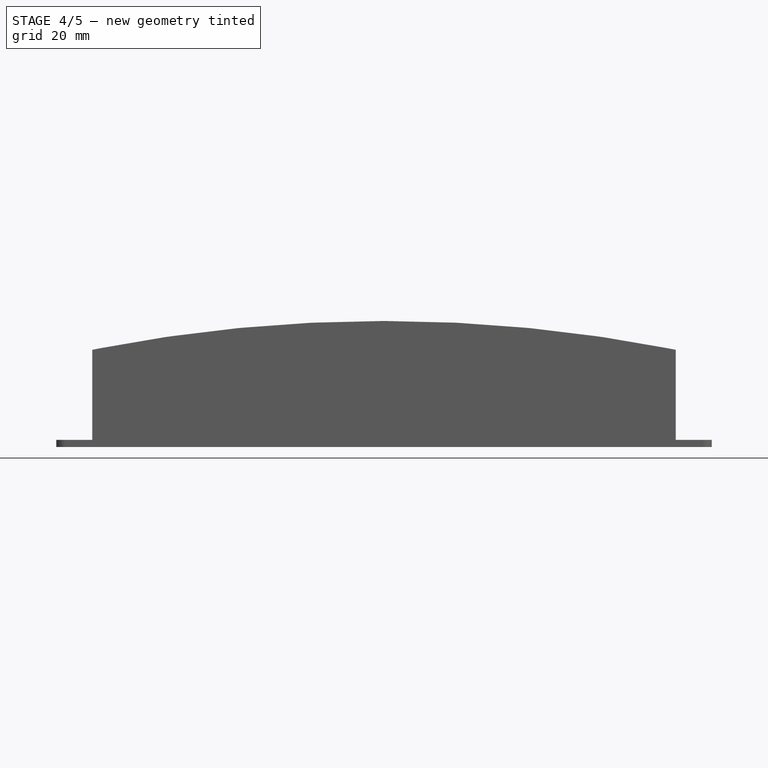
[diagram: stage 4 of 5 — front view after this stage's code; geometry added in this stage tinted green]
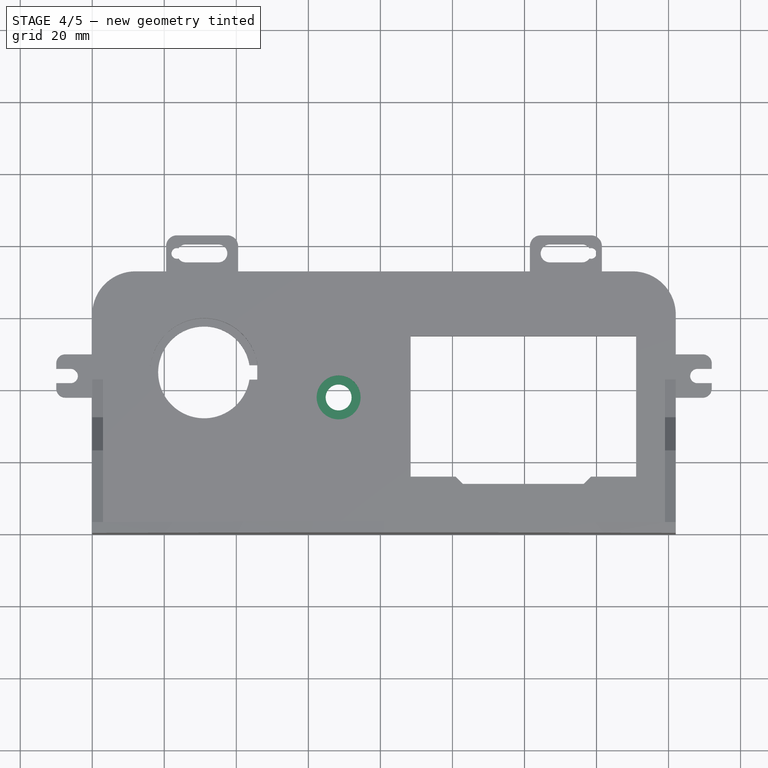
[diagram: stage 4 of 5 — top view after this stage's code; geometry added in this stage tinted green]
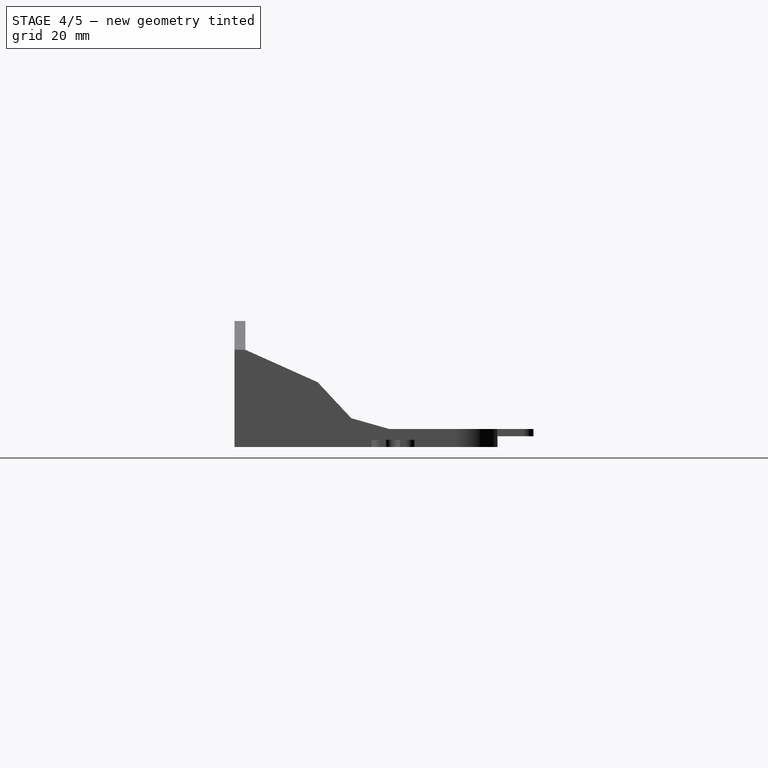
[diagram: stage 4 of 5 — right view after this stage's code; geometry added in this stage tinted green]
FEATURE [Sketcher::SketchObject] Sketch013
  ExternalGeometry = -> [Pocket008]
  FullyConstrained = true
  MapMode = 5
  Placement = pos=(0,0,5) rot=(0,0,1;0rad)
  Support = -> [Pocket008]
  sketch-geometry (1):
    g0: Circle CenterX=68.4 CenterY=38 CenterZ=0 NormalX=0 NormalY=0 NormalZ=1 AngleXU=0 Radius=6.1
  constraints (2):
    c: Coincident(g0,g-3)
    c: Diameter(g0) = 12.2
FEATURE [PartDesign::Pocket] Pocket009
  BaseFeature = -> Pocket008
  Direction = (0,0,-1)
  Length = 1
  Length2 = 5
  Profile = -> Sketch013
  ReferenceAxis = -> Sketch013 [N_Axis]
  Type = 0
FEATURE [Sketcher::SketchObject] Sketch
  ExternalGeometry = -> [Pocket009]
  FullyConstrained = true
  MapMode = 5
  Placement = pos=(0,0,0) rot=(1,0,0;3.14159rad)
  Support = -> [Pocket009]
  sketch-geometry (4):
    g0: Circle CenterX=85.9 CenterY=-16 CenterZ=0 NormalX=0 NormalY=0 NormalZ=1 AngleXU=0 Radius=1.4
    g1: Circle CenterX=153.5 CenterY=-16 CenterZ=0 NormalX=0 NormalY=0 NormalZ=1 AngleXU=0 Radius=1.4
    g2: Circle CenterX=85.9 CenterY=-55 CenterZ=0 NormalX=0 NormalY=0 NormalZ=1 AngleXU=0 Radius=1.4
    g3: Circle CenterX=153.5 CenterY=-55 CenterZ=0 NormalX=0 NormalY=0 NormalZ=1 AngleXU=0 Radius=1.4
  constraints (14):
    c: Diameter(g0) = 2.8
    c: Diameter(g1) = 2.8
    c: Diameter(g3) = 2.8
    c: Diameter(g2) = 2.8
    c: DistanceY(g2,g0) = 39
    c: DistanceY(g1,g0) = 0
    c: DistanceY(g2,g3) = 0
    c: DistanceX(g0,g1) = 67.6
    c: DistanceX(g3,g1) = 0
    c: DistanceX(g0,g2) = 0
    c: DistanceX(g-3,g-3) = 62.6
    c: DistanceX(g2,g-3) = 2.5
    c: DistanceY(g-4,g-4) = 39
    c: DistanceY(g-4,g2) = 0
FEATURE [PartDesign::Pocket] Pocket010
  BaseFeature = -> Pocket009
  Direction = (0,0,1)
  Length = 3.5
  Length2 = 5
  Profile = -> Sketch
  ReferenceAxis = -> Sketch [N_Axis]
  Type = 0
FEATURE [Sketcher::SketchObject] Sketch014
  ExternalGeometry = -> [Pocket010]
  FullyConstrained = false
  MapMode = 5
  Placement = pos=(0,0,3.5) rot=(1,0,0;3.14159rad)
  Support = -> [Pocket010]
  sketch-geometry (16):
    g0: LineSegment StartX=85.15 StartY=-56.1822 StartZ=0 EndX=85.15 EndY=-53.8178 EndZ=0
    g1: LineSegment StartX=86.65 StartY=-56.1822 StartZ=0 EndX=86.65 EndY=-53.8178 EndZ=0
    g2: ArcOfCircle CenterX=85.9 CenterY=-55.2299 CenterZ=0 NormalX=0 NormalY=0 NormalZ=1 AngleXU=0 Radius=1.5989 StartAngle=1.08256 EndAngle=2.05904
    g3: ArcOfCircle CenterX=85.9 CenterY=-54.1452 CenterZ=0 NormalX=0 NormalY=0 NormalZ=1 AngleXU=0 Radius=2.17066 StartAngle=4.3596 EndAngle=5.06518
    g4: LineSegment StartX=152.75 StartY=-17.1822 StartZ=0 EndX=152.75 EndY=-14.8178 EndZ=0
    g5: LineSegment StartX=154.25 StartY=-14.8178 StartZ=0 EndX=154.25 EndY=-17.1822 EndZ=0
    g6: ArcOfCircle CenterX=153.5 CenterY=-16 CenterZ=0 NormalX=0 NormalY=0 NormalZ=1 AngleXU=0 Radius=1.4 StartAngle=4.14704 EndAngle=5.27774
    g7: ArcOfCircle CenterX=153.5 CenterY=-16 CenterZ=0 NormalX=0 NormalY=0 NormalZ=1 AngleXU=0 Radius=1.4 StartAngle=1.00544 EndAngle=2.13615
    g8: LineSegment StartX=152.75 StartY=-56.1822 StartZ=0 EndX=152.75 EndY=-53.8178 EndZ=0
    g9: LineSegment StartX=154.25 StartY=-56.1822 StartZ=0 EndX=154.25 EndY=-53.8178 EndZ=0
    g10: ArcOfCircle CenterX=153.5 CenterY=-55 CenterZ=0 NormalX=0 NormalY=0 NormalZ=1 AngleXU=0 Radius=1.4 StartAngle=1.00544 EndAngle=2.13615
    g11: ArcOfCircle CenterX=153.5 CenterY=-55 CenterZ=0 NormalX=0 NormalY=0 NormalZ=1 AngleXU=0 Radius=1.4 StartAngle=4.14704 EndAngle=5.27774
    g12: LineSegment StartX=85.15 StartY=-17.1822 StartZ=0 EndX=85.15 EndY=-14.8178 EndZ=0
    g13: LineSegment StartX=86.65 StartY=-14.8178 StartZ=0 EndX=86.65 EndY=-17.1822 EndZ=0
    g14: ArcOfCircle CenterX=85.9 CenterY=-16.19 CenterZ=0 NormalX=0 NormalY=0 NormalZ=1 AngleXU=0 Radius=1.24377 StartAngle=4.06513 EndAngle=5.35965
    g15: ArcOfCircle CenterX=85.9 CenterY=-16 CenterZ=0 NormalX=0 NormalY=0 NormalZ=1 AngleXU=0 Radius=1.4 StartAngle=1.00544 EndAngle=2.13615
  constraints (53):
    c: PointOnObject(g0,g-3)
    c: PointOnObject(g0,g-3)
    c: Vertical(g0)
    c: PointOnObject(g1,g-3)
    c: PointOnObject(g1,g-3)
    c: Vertical(g1)
    c: Coincident(g2,g0)
    c: Coincident(g2,g1)
    c: Coincident(g3,g0)
    c: Coincident(g3,g1)
    c: PointOnObject(g4,g-5)
    c: PointOnObject(g4,g-5)
    c: Vertical(g4)
    c: PointOnObject(g5,g-5)
    c: PointOnObject(g5,g-5)
    c: Vertical(g5)
    c: Coincident(g6,g4)
    c: Coincident(g6,g5)
    c: Tangent(g6,g-5)
    c: Coincident(g7,g4)
    c: Coincident(g7,g5)
    c: Tangent(g7,g-5)
    c: PointOnObject(g8,g-4)
    c: PointOnObject(g8,g-4)
    c: Vertical(g8)
    c: PointOnObject(g9,g-4)
    c: PointOnObject(g9,g-4)
    c: Vertical(g9)
    c: Coincident(g10,g8)
    c: Coincident(g10,g9)
    c: Tangent(g10,g-4)
    c: Coincident(g11,g8)
    c: Coincident(g11,g9)
    c: DistanceY(g8,g9) = 0
    c: DistanceX(g8,g9) = 1.5
    c: Tangent(g-4,g11)
    c: DistanceX(g0,g1) = 1.5
    c: DistanceX(g0,g2) = 0.75
    c: DistanceX(g4,g5) = 1.5
    c: DistanceX(g4,g6) = 0.75
    c: PointOnObject(g12,g-6)
    c: PointOnObject(g12,g-6)
    c: Vertical(g12)
    c: PointOnObject(g13,g-6)
    c: PointOnObject(g13,g-6)
    c: Vertical(g13)
    c: Coincident(g14,g12)
    c: Coincident(g14,g13)
    c: Coincident(g15,g12)
    c: Coincident(g15,g13)
    c: DistanceX(g12,g13) = 1.5
    c: DistanceX(g12,g-6) = 0.75
    c: Tangent(g-6,g15)
FEATURE [PartDesign::Pocket] Pocket011
  BaseFeature = -> Pocket010
  Direction = (0,0,1)
  Length = 0.2
  Length2 = 5
  Profile = -> Sketch014
  ReferenceAxis = -> Sketch014 [N_Axis]
  Type = 0
FEATURE [Sketcher::SketchObject] Sketch016
  FullyConstrained = false
  MapMode = 5
  Placement = pos=(0,0,0) rot=(1,0,0;3.14159rad)
  sketch-geometry (4):
    g0: LineSegment StartX=73.4 StartY=-43 StartZ=0 EndX=63.4 EndY=-43 EndZ=0
    g1: LineSegment StartX=63.4 StartY=-43 StartZ=0 EndX=63.4 EndY=-31 EndZ=0
    g2: LineSegment StartX=63.4 StartY=-31 StartZ=0 EndX=73.4 EndY=-31 EndZ=0
    g3: LineSegment StartX=73.4 StartY=-31 StartZ=0 EndX=73.4 EndY=-43 EndZ=0
  constraints (10):
    c: Coincident(g0,g1)
    c: Coincident(g1,g2)
    c: Coincident(g2,g3)
    c: Coincident(g3,g0)
    c: Horizontal(g0)
    c: Horizontal(g2)
    c: Vertical(g1)
    c: Vertical(g3)
    c: DistanceX(g2,g2) = 10
    c: DistanceY(g1,g1) = 12
FEATURE [PartDesign::Pocket] Pocket013
  BaseFeature = -> Pocket011
  Direction = (0,0,1)
  Length = 2.5
  Length2 = 5
  Profile = -> Sketch016
  ReferenceAxis = -> Sketch016 [N_Axis]
  Type = 0
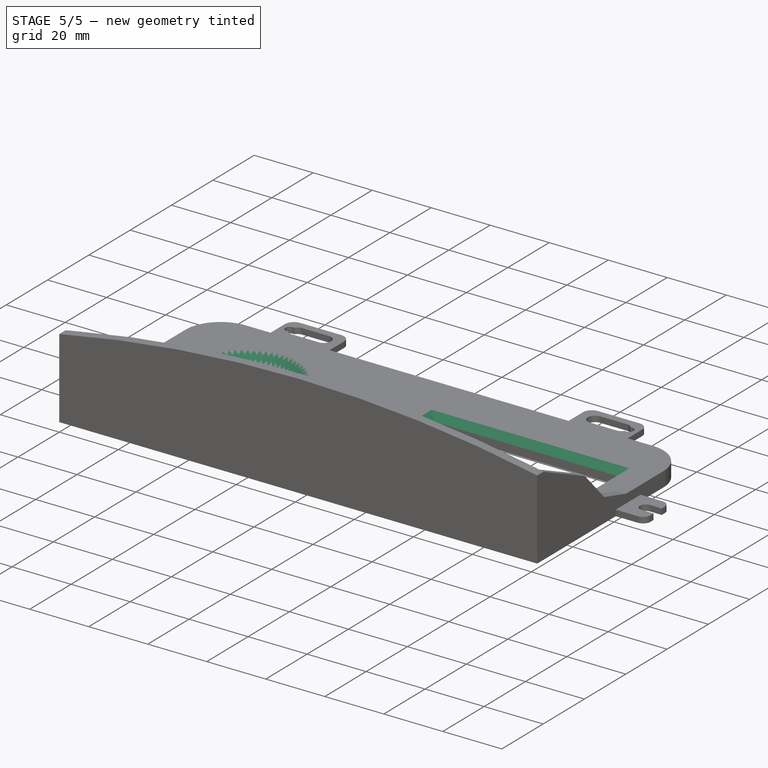
[diagram: stage 5 of 5 — iso view after this stage's code; geometry added in this stage tinted green]
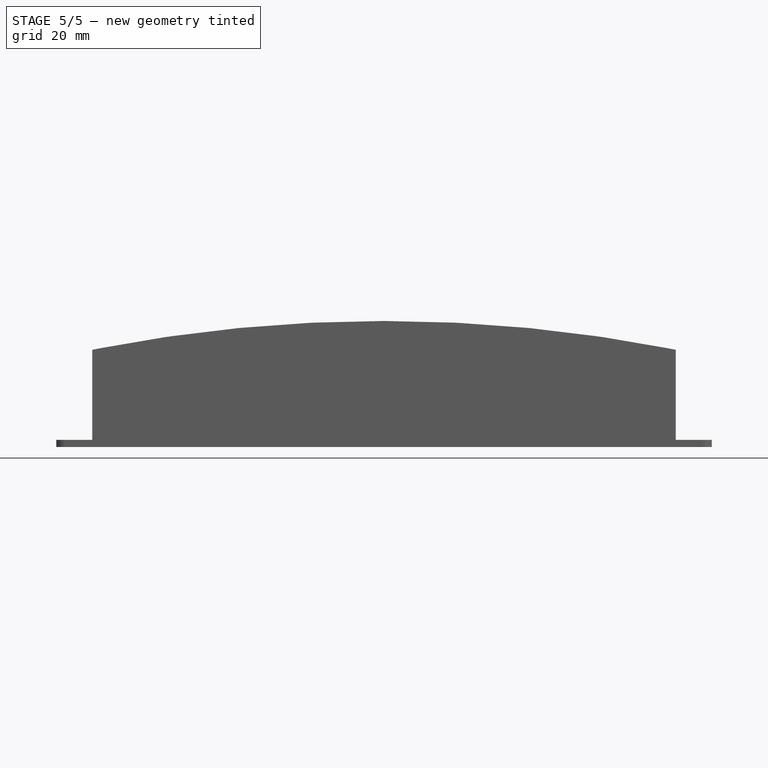
[diagram: stage 5 of 5 — front view after this stage's code; geometry added in this stage tinted green]
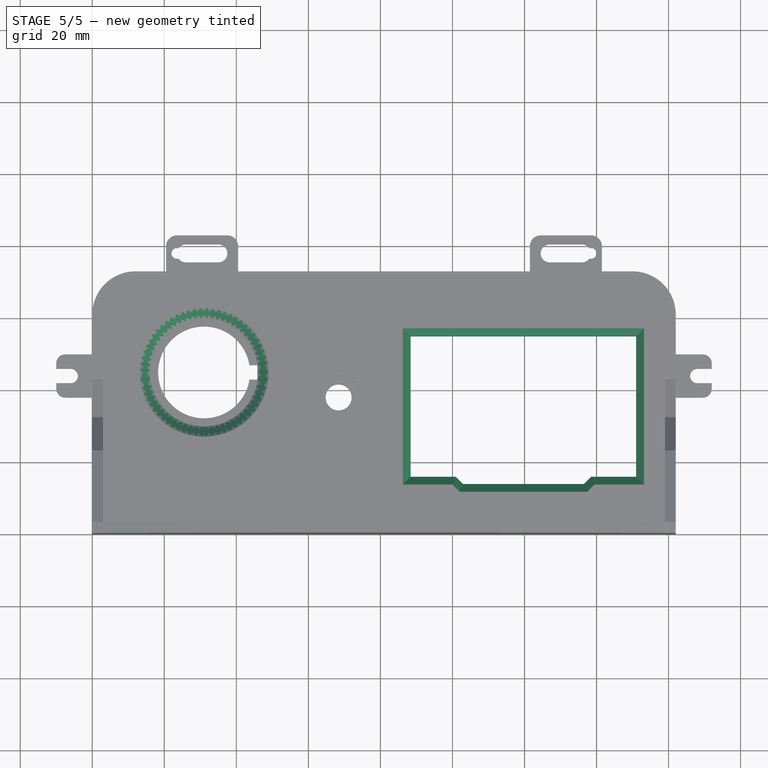
[diagram: stage 5 of 5 — top view after this stage's code; geometry added in this stage tinted green]
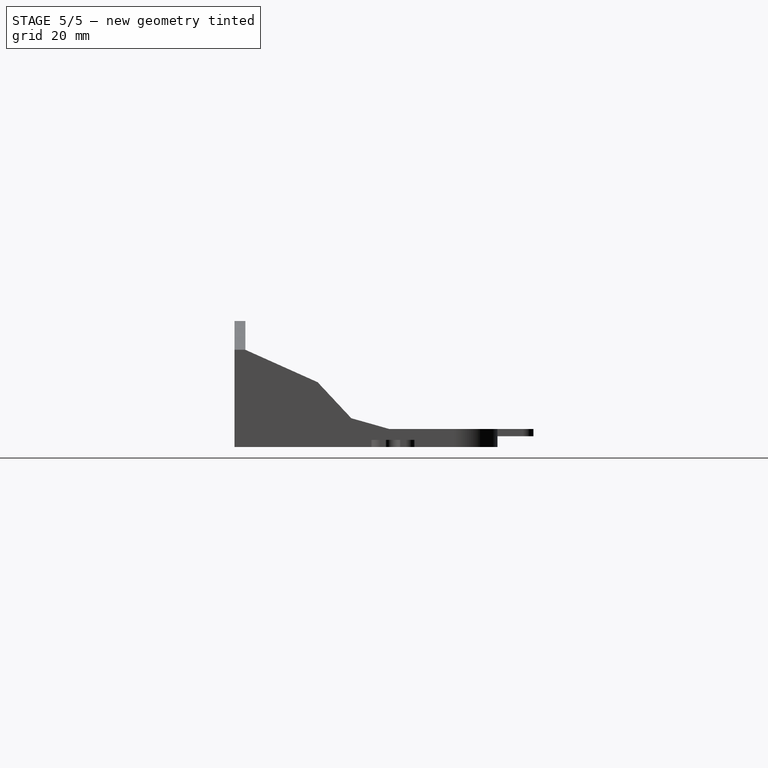
[diagram: stage 5 of 5 — right view after this stage's code; geometry added in this stage tinted green]
FEATURE [Sketcher::SketchObject] Sketch018
  FullyConstrained = false
  MapMode = 5
  Placement = pos=(0,55.75,0) rot=(1,0,0;1.5708rad)
  sketch-geometry (4):
    g0: LineSegment StartX=72 StartY=-41.6 StartZ=0 EndX=64.8 EndY=-41.6 EndZ=0
    g1: LineSegment StartX=64.8 StartY=-41.6 StartZ=0 EndX=64.8 EndY=-34.4 EndZ=0
    g2: LineSegment StartX=64.8 StartY=-34.4 StartZ=0 EndX=72 EndY=-34.4 EndZ=0
    g3: LineSegment StartX=72 StartY=-34.4 StartZ=0 EndX=72 EndY=-41.6 EndZ=0
  constraints (8):
    c: Coincident(g0,g1)
    c: Coincident(g1,g2)
    c: Coincident(g2,g3)
    c: Coincident(g3,g0)
    c: Horizontal(g0)
    c: Horizontal(g2)
    c: Vertical(g1)
    c: Vertical(g3)
FEATURE [PartDesign::Pocket] Pocket015
  BaseFeature = -> Pocket013
  Direction = (0,1,-2e-16)
  Length = 0.2
  Length2 = 5
  Profile = -> Sketch018
  ReferenceAxis = -> Sketch018 [N_Axis]
  Type = 0
FEATURE [Sketcher::SketchObject] Sketch019
  ExternalGeometry = -> [Pocket015]
  FullyConstrained = true
  MapMode = 5
  Placement = pos=(0,0,0) rot=(1,0,0;3.14159rad)
  Support = -> [Pocket015]
  sketch-geometry (4):
    g0: ArcOfCircle CenterX=86.5 CenterY=-25 CenterZ=0 NormalX=0 NormalY=0 NormalZ=1 AngleXU=0 Radius=1.5 StartAngle=2.3e-15 EndAngle=3.14159
    g1: ArcOfCircle CenterX=86.5 CenterY=-45 CenterZ=0 NormalX=0 NormalY=0 NormalZ=1 AngleXU=0 Radius=1.5 StartAngle=3.14159 EndAngle=6.28319
    g2: LineSegment StartX=85 StartY=-25 StartZ=0 EndX=85 EndY=-45 EndZ=0
    g3: LineSegment StartX=88 StartY=-45 StartZ=0 EndX=88 EndY=-25 EndZ=0
  constraints (11):
    c: Tangent(g0,g2) = -1.5708
    c: Tangent(g2,g1) = -1.5708
    c: Tangent(g1,g3) = -1.5708
    c: Tangent(g3,g0) = -1.5708
    c: Equal(g0,g1)
    c: Vertical(g2)
    c: DistanceX(g0,g0) = 3
    c: DistanceY(g1,g0) = 20
    c: DistanceX(g0,g-3) = 0.4
    c: DistanceY(g-3,g-3) = 39
    c: DistanceY(g-3,g1) = 10
FEATURE [PartDesign::Pocket] Pocket016
  BaseFeature = -> Pocket015
  Direction = (0,0,1)
  Length = 3
  Length2 = 5
  Profile = -> Sketch019
  ReferenceAxis = -> Sketch019 [N_Axis]
  Type = 0
FEATURE [PartDesign::Chamfer] Chamfer
  Angle = 45
  Base = -> Pocket016 [Edge139,Edge145,Edge149,Edge150,Edge154,Edge156,Edge152,Edge147,Edge143]
  BaseFeature = -> Pocket016
  ChamferType = 0
  FlipDirection = false
  Size = 2.2
  Size2 = 1
  SupportTransform = false
  UseAllEdges = false
FEATURE [PartDesign::Chamfer] Chamfer001
  Angle = 45
  Base = -> Chamfer [Edge71]
  BaseFeature = -> Chamfer
  ChamferType = 0
  FlipDirection = false
  Size = 2.9
  Size2 = 1
  SupportTransform = false
  UseAllEdges = false
FEATURE [PartDesign::Body] Body
  Group = -> [Sketch,Sketch001,Pad,Sketch002,Pad001,Sketch003,Pocket,Sketch004,Pocket001,Sketch005,Pad002,Sketch006,Pocket002,Sketch007,Pocket003,Sketch008,Pocket004,Sketch009,Pocket005,Sketch010,Pocket006,Sketch011,Pocket007,Sketch012,Pocket008,Sketch013,Pocket009,Pocket010,Sketch014,Pocket011,Sketch016,Pocket013,Sketch018,Pocket015,Sketch019,Pocket016,Chamfer,Chamfer001]
  Origin = -> Origin
  Tip = -> Chamfer001
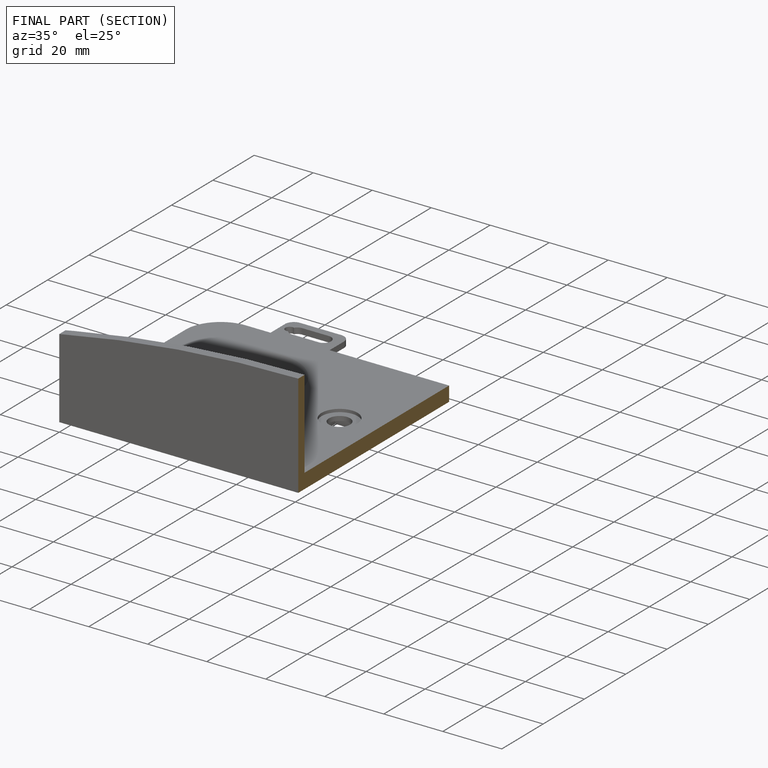
[diagram: finished part — half-section view (interior)]
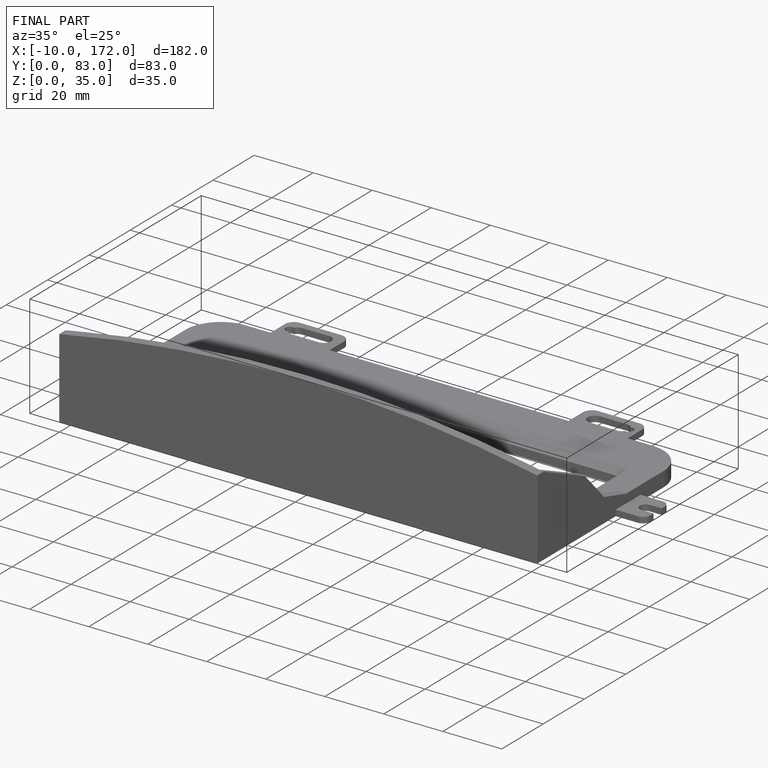
[diagram: finished part — iso view with bounding-box wireframe]
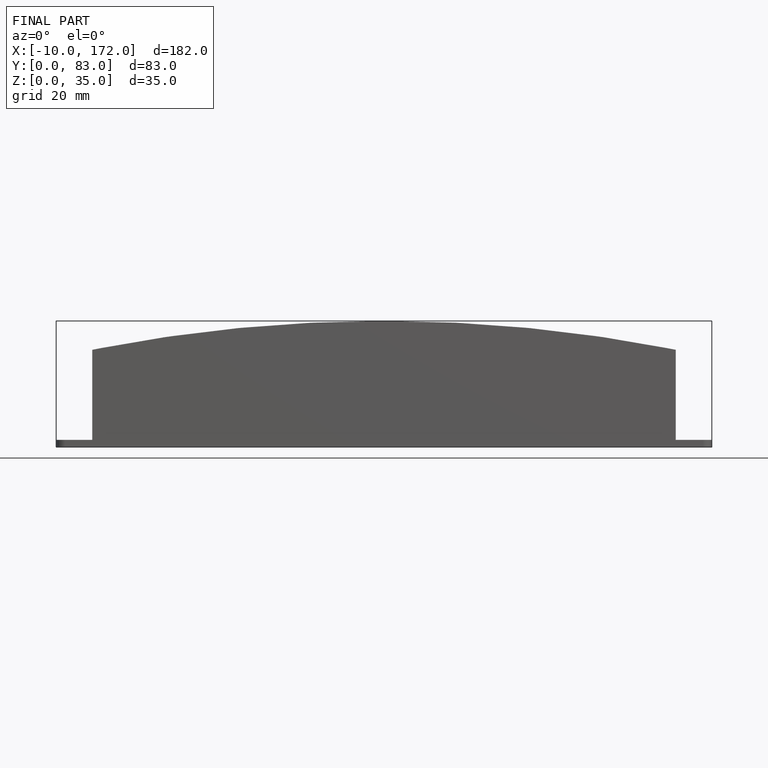
[diagram: finished part — front view with bounding-box wireframe]
